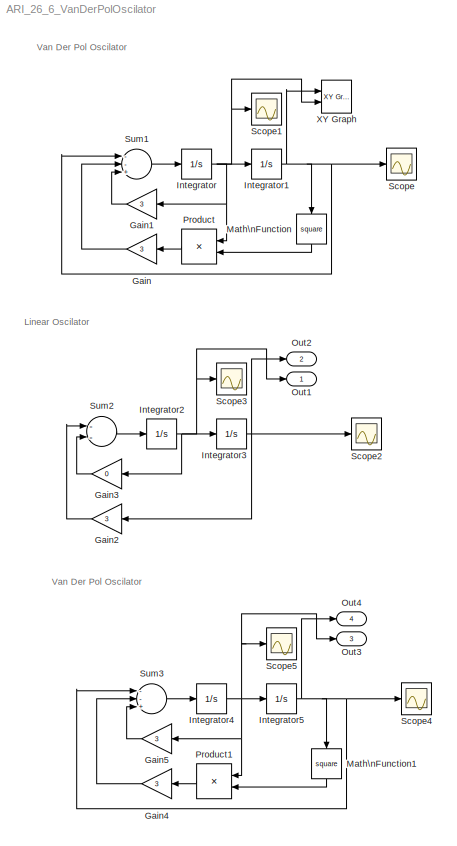
MODEL ARI_26_6_VanDerPolOscilator
KIND model
BLOCK [Gain] Gain
  Gain = 3
  SID = 1
BLOCK [Gain] Gain1
  Gain = 3
  SID = 2
BLOCK [Gain] Gain2
  Gain = 3
  SID = 3
BLOCK [Gain] Gain3
  Gain = 0
  SID = 4
BLOCK [Gain] Gain4
  Gain = 3
  SID = 23
BLOCK [Gain] Gain5
  Gain = 3
  SID = 24
BLOCK [Integrator] Integrator
  InitialCondition = 3
  Ports = [1, 1]
  SID = 5
BLOCK [Integrator] Integrator1
  InitialCondition = 2
  Ports = [1, 1]
  SID = 6
BLOCK [Integrator] Integrator2
  InitialCondition = 1
  Ports = [1, 1]
  SID = 7
BLOCK [Integrator] Integrator3
  InitialCondition = -2:1:2
  Ports = [1, 1]
  SID = 8
BLOCK [Integrator] Integrator4
  InitialCondition = 3
  Ports = [1, 1]
  SID = 25
BLOCK [Integrator] Integrator5
  InitialCondition = -2:1:2
  Ports = [1, 1]
  SID = 26
BLOCK [Math] Math\nFunction
  Operator = square
  Ports = [1, 1]
  SID = 9
BLOCK [Math] Math\nFunction1
  Operator = square
  Ports = [1, 1]
  SID = 27
BLOCK [Outport] Out1
  IconDisplay = Port number
  SID = 21
BLOCK [Outport] Out2
  IconDisplay = Port number
  Port = 2
  SID = 22
BLOCK [Outport] Out3
  IconDisplay = Port number
  Port = 3
  SID = 33
BLOCK [Outport] Out4
  IconDisplay = Port number
  Port = 4
  SID = 34
BLOCK [Product] Product
  Ports = [2, 1]
  SID = 10
BLOCK [Product] Product1
  Ports = [2, 1]
  SID = 28
BLOCK [Scope] Scope
  DataFormat = StructureWithTime
  Floating = off
  NumInputPorts = 1
  Ports = [1]
  SID = 11
  SampleTime = 0
BLOCK [Scope] Scope1
  DataFormat = StructureWithTime
  Floating = off
  NumInputPorts = 1
  Ports = [1]
  SID = 12
  SampleTime = 0
BLOCK [Scope] Scope2
  DataFormat = StructureWithTime
  Floating = off
  NumInputPorts = 1
  Ports = [1]
  SID = 13
  SampleTime = 0
  SaveName = ScopeData1
BLOCK [Scope] Scope3
  DataFormat = StructureWithTime
  Floating = off
  NumInputPorts = 1
  Ports = [1]
  SID = 14
  SampleTime = 0
  SaveName = ScopeData2
BLOCK [Scope] Scope4
  DataFormat = StructureWithTime
  Floating = off
  NumInputPorts = 1
  Ports = [1]
  SID = 29
  SampleTime = 0
  SaveName = ScopeData3
BLOCK [Scope] Scope5
  DataFormat = StructureWithTime
  Floating = off
  NumInputPorts = 1
  Ports = [1]
  SID = 30
  SampleTime = 0
  SaveName = ScopeData4
BLOCK [Sum] Sum1
  Inputs = --+
  Ports = [3, 1]
  SID = 15
BLOCK [Sum] Sum2
  Inputs = --
  Ports = [2, 1]
  SID = 16
BLOCK [Sum] Sum3
  Inputs = --+
  Ports = [3, 1]
  SID = 31
BLOCK [Reference] XY Graph  REF=simulink/Sinks/XY Graph
  Ports = [2]
  SID = 17
  SourceBlock = simulink/Sinks/XY Graph
  SourceType = XY scope.
  st = -1
  xmax = 3
  xmin = -3
  ymax = 6
  ymin = -6
ANNOTATION (root): Linear Oscilator
ANNOTATION (root): Van Der Pol Oscilator
LINE Gain1:1 -> Sum1:3
LINE Gain2:1 -> Sum2:1
LINE Gain3:1 -> Sum2:2
LINE Gain4:1 -> Sum3:2
LINE Gain5:1 -> Sum3:3
LINE Gain:1 -> Sum1:2
NET Integrator1:1 -> Math\nFunction:1, Scope:1, Sum1:1, XY Graph:1
NET Integrator2:1 -> Gain3:1, Integrator3:1, Out1:1, Scope3:1
NET Integrator3:1 -> Gain2:1, Out2:1, Scope2:1
NET Integrator4:1 -> Gain5:1, Integrator5:1, Out3:1, Product1:1, Scope5:1
NET Integrator5:1 -> Math\nFunction1:1, Out4:1, Scope4:1, Sum3:1
NET Integrator:1 -> Gain1:1, Integrator1:1, Product:1, Scope1:1, XY Graph:2
LINE Math\nFunction1:1 -> Product1:2
LINE Math\nFunction:1 -> Product:2
LINE Product1:1 -> Gain4:1
LINE Product:1 -> Gain:1
LINE Sum1:1 -> Integrator:1
LINE Sum2:1 -> Integrator2:1
LINE Sum3:1 -> Integrator4:1
note: NET lines group one-source signal fan-out (src -> all destinations, sorted); 1:1 wires keep LINE
